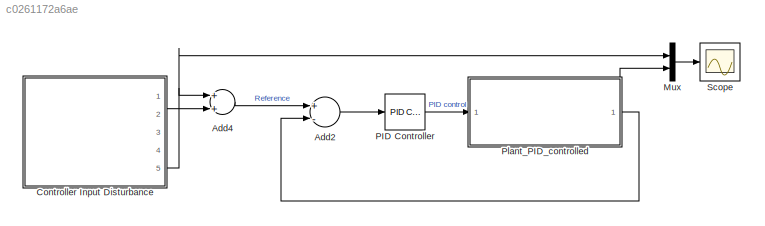
MODEL slx_c0261172a6ae
KIND model
CONFIG AbsTol = auto
CONFIG EnableMultiTasking = off
CONFIG FixedStep = auto
CONFIG MaxStep = auto
CONFIG MinStep = auto
CONFIG RelTol = 1e-3
CONFIG SampleTimeConstraint = Unconstrained
CONFIG Solver = VariableStepAuto
CONFIG SolverName = VariableStepAuto
CONFIG StartTime = 0.0
CONFIG StopTime = 2000
BLOCK [Sum] Add2
  InputSameDT = off
  Inputs = +-
  OutDataTypeStr = Inherit: Inherit via internal rule
  Ports = [2, 1]
  SaturateOnIntegerOverflow = off
BLOCK [Sum] Add4
  InputSameDT = off
  OutDataTypeStr = Inherit: Inherit via internal rule
  Ports = [2, 1]
  SaturateOnIntegerOverflow = off
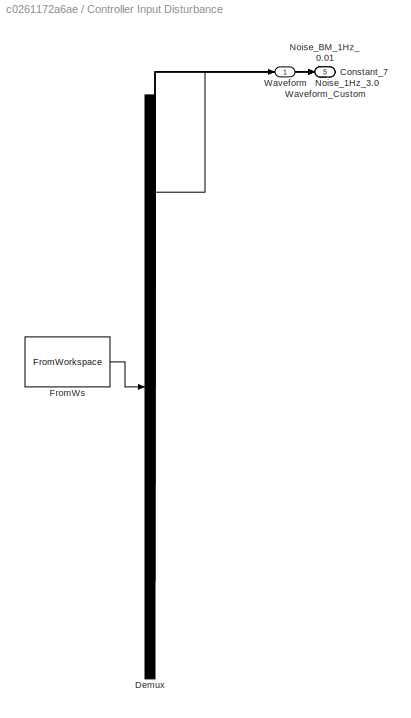
BLOCK [SubSystem] Controller Input Disturbance
  ClipboardFcn = sigbuilder_block('clipboard');
  CloseFcn = sigbuilder_block('close');
  ContinueFcn = sigbuilder_block('continue');
  CopyFcn = sigbuilder_block('copy');
  DeleteFcn = sigbuilder_block('delete');
  LoadFcn = sigbuilder_block('load');
  MaskHideContents = on
  ModelCloseFcn = sigbuilder_block('modelClose');
  NameChangeFcn = sigbuilder_block('namechange');
  OpenFcn = sigbuilder_block('open',[6 63 1012.5 449.25 ]);
  PauseFcn = sigbuilder_block('pause');
  Ports = [0, 5]
  PreSaveFcn = sigbuilder_block('preSave');
  RequestExecContextInheritance = off
  StartFcn = sigbuilder_block('start');
  StopFcn = sigbuilder_block('stop');
  Tag = STV Subsys
BLOCK [Outport] Controller Input Disturbance/Constant_7
  IconDisplay = Port number
  Port = 5
  Tag = STV Outport
BLOCK [Demux] Controller Input Disturbance/Demux
  Outputs = 5
  Ports = [1, 5]
  Tag = STV Demux
BLOCK [FromWorkspace] Controller Input Disturbance/FromWs
  SampleTime = 0
  Tag = STV FromWs
  VariableName = tuvar
  ZeroCross = on
BLOCK [Outport] Controller Input Disturbance/Noise_1Hz_3.0
  IconDisplay = Port number
  Port = 3
  Tag = STV Outport
BLOCK [Outport] Controller Input Disturbance/Noise_BM_1Hz_0.01
  IconDisplay = Port number
  Port = 2
  Tag = STV Outport
BLOCK [Outport] Controller Input Disturbance/Waveform
  IconDisplay = Port number
  Tag = STV Outport
BLOCK [Outport] Controller Input Disturbance/Waveform_Custom
  IconDisplay = Port number
  Port = 4
  Tag = STV Outport
BLOCK [Mux] Mux
  DisplayOption = bar
  Inputs = 2
  Ports = [2, 1]
BLOCK [Reference] PID Controller  REF=simulink/Continuous/PID Controller
  Ports = [1, 1]
  SourceBlock = simulink/Continuous/PID Controller
  SourceProductBaseCode = SL
  SourceProductName = Simulink
  SourceType = PID 1dof
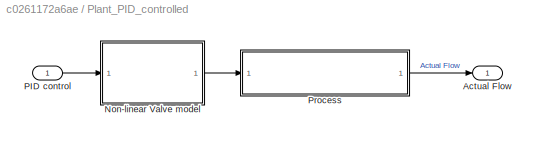
BLOCK [SubSystem] Plant_PID_controlled
  Ports = [1, 1]
  RequestExecContextInheritance = off
BLOCK [Outport] Plant_PID_controlled/Actual Flow
  IconDisplay = Port number
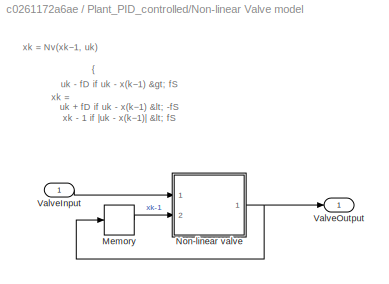
BLOCK [SubSystem] Plant_PID_controlled/Non-linear Valve model
  Ports = [1, 1]
  RequestExecContextInheritance = off
BLOCK [Memory] Plant_PID_controlled/Non-linear Valve model/Memory
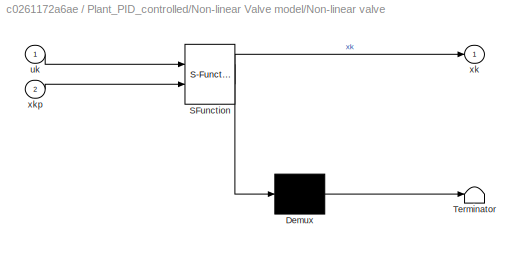
BLOCK [SubSystem] Plant_PID_controlled/Non-linear Valve model/Non-linear valve
  ErrorFcn = Stateflow.Translate.translate
  PermitHierarchicalResolution = ExplicitOnly
  Ports = [2, 1]
  RequestExecContextInheritance = off
  SFBlockType = MATLAB Function
  TreatAsAtomicUnit = on
BLOCK [Demux] Plant_PID_controlled/Non-linear Valve model/Non-linear valve/ Demux 
  Outputs = 1
  Ports = [1, 1]
BLOCK [S-Function] Plant_PID_controlled/Non-linear Valve model/Non-linear valve/ SFunction 
  EnableBusSupport = on
  FunctionName = sf_sfun
  PortCounts = [2 2]
  Ports = [2, 2]
  SFcnIsStateOwnerBlock = off
  SFunctionDeploymentMode = off
  Tag = Stateflow S-Function Valve_Control_PID_TUNE 1
BLOCK [Terminator] Plant_PID_controlled/Non-linear Valve model/Non-linear valve/ Terminator 
BLOCK [Inport] Plant_PID_controlled/Non-linear Valve model/Non-linear valve/uk
  IconDisplay = Port number
BLOCK [Outport] Plant_PID_controlled/Non-linear Valve model/Non-linear valve/xk
  IconDisplay = Port number
BLOCK [Inport] Plant_PID_controlled/Non-linear Valve model/Non-linear valve/xkp
  IconDisplay = Port number
  Port = 2
BLOCK [Inport] Plant_PID_controlled/Non-linear Valve model/ValveInput
  IconDisplay = Port number
BLOCK [Outport] Plant_PID_controlled/Non-linear Valve model/ValveOutput
  IconDisplay = Port number
BLOCK [Inport] Plant_PID_controlled/PID control
  IconDisplay = Port number
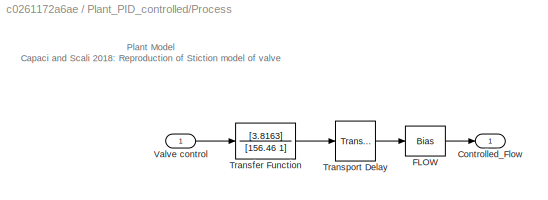
BLOCK [SubSystem] Plant_PID_controlled/Process
  Ports = [1, 1]
  RequestExecContextInheritance = off
BLOCK [Outport] Plant_PID_controlled/Process/Controlled_Flow
  IconDisplay = Port number
BLOCK [Bias] Plant_PID_controlled/Process/FLOW
  SaturateOnIntegerOverflow = off
BLOCK [TransferFcn] Plant_PID_controlled/Process/Transfer Function
  Denominator = [156.46 1]
  Numerator = [3.8163]
BLOCK [TransportDelay] Plant_PID_controlled/Process/Transport Delay 
  DelayTime = TIME_DELAY
  Ports = [1, 1]
BLOCK [Inport] Plant_PID_controlled/Process/Valve control
  IconDisplay = Port number
BLOCK [Scope] Scope
  Floating = off
  NumInputPorts = 1
  Ports = [1]
  ScopeSpecificationString = Simulink.scopes.TimeScopeBlockCfg('CurrentConfiguration', extmgr.ConfigurationSet(extmgr.Configuration('Core','General UI',true,'FigureColor',[1 1 1]),extmgr.Configuration('Core','Source UI',true),extmgr.Configuration('Sources','WiredSimulink',true),extmgr.Configuration('Visuals','Time Domain',true,'SerializedDisplays',{struct('MinYLimReal','-14.70219','MaxYLimReal','132.31975','YLabelReal','Contr...<+2129ch>
ANNOTATION Plant_PID_controlled/Non-linear Valve model: {
ANNOTATION Plant_PID_controlled/Non-linear Valve model: uk - fD if uk - x(k−1) > fS uk + fD if uk - x(k−1) < -fS xk - 1 if |uk - x(k−1)| < fS
ANNOTATION Plant_PID_controlled/Non-linear Valve model: xk =
ANNOTATION Plant_PID_controlled/Non-linear Valve model: xk = Nv(xk−1, uk)
ANNOTATION Plant_PID_controlled/Process: Plant Model Capaci and Scali 2018 : Reproduction of Stiction model of valve
LINE Add2:1 -> PID Controller:1
LINE Add4:1 -> Add2:1
LINE Controller Input Disturbance:2 -> Add4:2
NET Controller Input Disturbance:5 -> Add4:1, Mux:1
LINE Mux:1 -> Scope:1
LINE PID Controller:1 -> Plant_PID_controlled:1
LINE Plant_PID_controlled/Non-linear Valve model/Memory:1 -> Plant_PID_controlled/Non-linear Valve model/Non-linear valve:2
NET Plant_PID_controlled/Non-linear Valve model/Non-linear valve:1 -> Plant_PID_controlled/Non-linear Valve model/Memory:1, Plant_PID_controlled/Non-linear Valve model/ValveOutput:1
LINE Plant_PID_controlled/Non-linear Valve model/ValveInput:1 -> Plant_PID_controlled/Non-linear Valve model/Non-linear valve:1
LINE Plant_PID_controlled/Non-linear Valve model:1 -> Plant_PID_controlled/Process:1
LINE Plant_PID_controlled/PID control:1 -> Plant_PID_controlled/Non-linear Valve model:1
LINE Plant_PID_controlled/Process/FLOW:1 -> Plant_PID_controlled/Process/Controlled_Flow:1
LINE Plant_PID_controlled/Process/Transfer Function:1 -> Plant_PID_controlled/Process/Transport Delay :1
LINE Plant_PID_controlled/Process/Transport Delay :1 -> Plant_PID_controlled/Process/FLOW:1
LINE Plant_PID_controlled/Process/Valve control:1 -> Plant_PID_controlled/Process/Transfer Function:1
LINE Plant_PID_controlled/Process:1 -> Plant_PID_controlled/Actual Flow:1
NET Plant_PID_controlled:1 -> Add2:2, Mux:2
note: NET lines group one-source signal fan-out (src -> all destinations, sorted); 1:1 wires keep LINE
CHART Plant_PID_controlled/Non-linear Valve model/Non-linear valve states=1 transitions=1
  STATE_LABEL 'eML_blk_kernel()'
  STATE_LABEL 'SCRIPT:\nfunction xk = fcn(uk, xkp)\n% ----------------------------------------------------------------------------------------\n% PID EVALUATION circuit Plant Model (RLVC2 | Verified 15-Jul-2020)\n% Non-Linear valve model: Capaci and Scali (2018)\n% Friction values conform to benchmark flow rates used in Capaci (2016)\n% ----------------------------------------------------------------------------------...<+426ch>'
